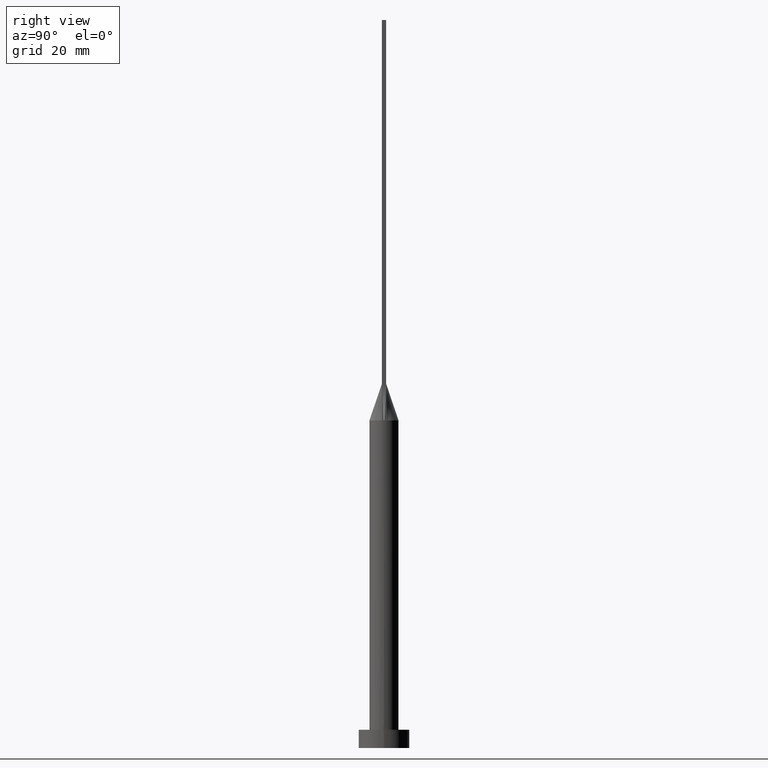
[diagram: clean part render]
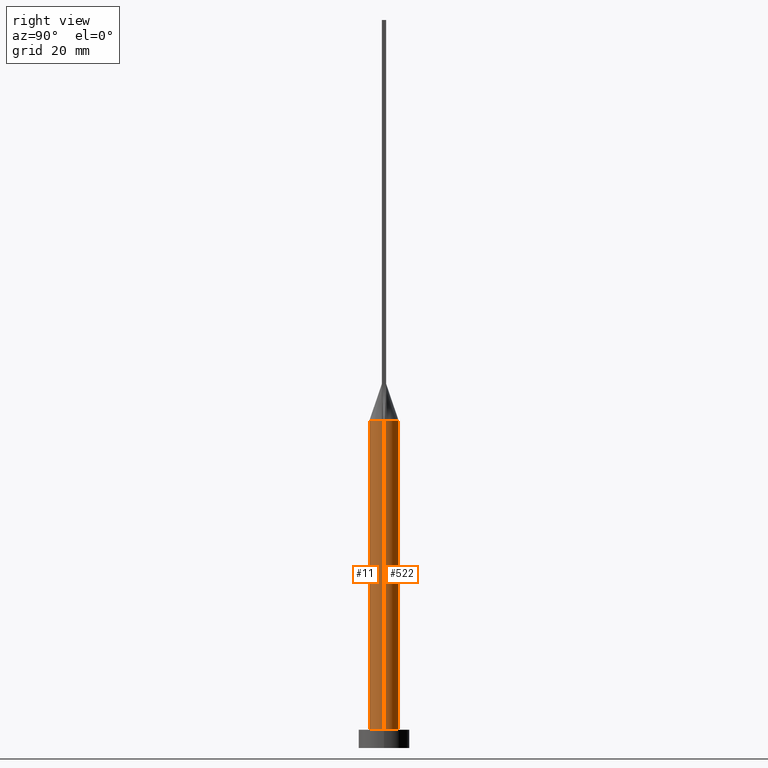
[diagram: same view with one multi-face feature highlighted, each face labeled with its STEP entity id]
A machine part, right view. The highlighted faces form ONE feature: a constant-radius fillet chain: 2 tangent blend faces with common blend radius 4 mm. The faces share edges in the B-rep.
Their STEP definitions:
[1] entity #11 (Cylinder):
#11 = ADVANCED_FACE ( 'NONE', ( #439 ), #385, .T. ) ;
#20 = EDGE_CURVE ( 'NONE', #281, #240, #435, .T. ) ;
#24 = ORIENTED_EDGE ( 'NONE', *, *, #315, .T. ) ;
#40 = DIRECTION ( 'NONE',  ( 1.000000000000000000, 0.000000000000000000, 0.000000000000000000 ) ) ;
#62 = EDGE_LOOP ( 'NONE', ( #413, #555, #538, #425, #221, #24 ) ) ;
#74 = CARTESIAN_POINT ( 'NONE',  ( 4.000000000000000000, 4.898587196589412829E-16, 90.00000000000001421 ) ) ;
#84 = DIRECTION ( 'NONE',  ( -0.000000000000000000, -0.000000000000000000, -1.000000000000000000 ) ) ;
#91 = EDGE_CURVE ( 'NONE', #495, #418, #295, .T. ) ;
#97 = AXIS2_PLACEMENT_3D ( 'NONE', #243, #559, #300 ) ;
#113 = CIRCLE ( 'NONE', #132, 4.000000000000000000 ) ;
#131 = CARTESIAN_POINT ( 'NONE',  ( 4.000000000000000000, 4.898587196589412829E-16, 5.000000000000000000 ) ) ;
#132 = AXIS2_PLACEMENT_3D ( 'NONE', #321, #149, #267 ) ;
#136 = CARTESIAN_POINT ( 'NONE',  ( 3.999842262273348936, 9.852009208038395466E-16, 90.00000000000001421 ) ) ;
#149 = DIRECTION ( 'NONE',  ( 0.000000000000000000, 0.000000000000000000, 1.000000000000000000 ) ) ;
#180 = EDGE_CURVE ( 'NONE', #195, #361, #424, .T. ) ;
#187 = CARTESIAN_POINT ( 'NONE',  ( -4.000000000000000000, 0.000000000000000000, 5.000000000000000000 ) ) ;
#193 = CARTESIAN_POINT ( 'NONE',  ( 3.950116941581656604, -0.6320178829360038053, 90.00000000000001421 ) ) ;
#195 = VERTEX_POINT ( 'NONE', #339 ) ;
#221 = ORIENTED_EDGE ( 'NONE', *, *, #180, .T. ) ;
#225 = VECTOR ( 'NONE', #84, 1000.000000000000000 ) ;
#233 = AXIS2_PLACEMENT_3D ( 'NONE', #534, #256, #40 ) ;
#240 = VERTEX_POINT ( 'NONE', #131 ) ;
#243 = CARTESIAN_POINT ( 'NONE',  ( 0.000000000000000000, 0.000000000000000000, 90.00000000000001421 ) ) ;
#256 = DIRECTION ( 'NONE',  ( 0.000000000000000000, 0.000000000000000000, 1.000000000000000000 ) ) ;
#259 = DIRECTION ( 'NONE',  ( 1.000000000000000000, 9.769962616701377556E-15, 0.000000000000000000 ) ) ;
#261 = EDGE_CURVE ( 'NONE', #418, #281, #351, .T. ) ;
#267 = DIRECTION ( 'NONE',  ( 1.000000000000000000, 0.000000000000000000, 0.000000000000000000 ) ) ;
#272 = CIRCLE ( 'NONE', #233, 4.000000000000000000 ) ;
#281 = VERTEX_POINT ( 'NONE', #136 ) ;
#295 = CIRCLE ( 'NONE', #97, 4.000000000000000000 ) ;
#297 = DIRECTION ( 'NONE',  ( -0.000000000000000000, -0.000000000000000000, -1.000000000000000000 ) ) ;
#299 = CARTESIAN_POINT ( 'NONE',  ( -4.000000000000000000, 0.000000000000000000, 90.00000000000001421 ) ) ;
#300 = DIRECTION ( 'NONE',  ( 1.000000000000000000, 0.000000000000000000, 0.000000000000000000 ) ) ;
#303 = CARTESIAN_POINT ( 'NONE',  ( 0.000000000000000000, 0.000000000000000000, 90.00000000000001421 ) ) ;
#305 = AXIS2_PLACEMENT_3D ( 'NONE', #303, #297, #475 ) ;
#309 = CARTESIAN_POINT ( 'NONE',  ( 0.000000000000000000, 0.000000000000000000, 90.00000000000001421 ) ) ;
#315 = EDGE_CURVE ( 'NONE', #361, #240, #272, .T. ) ;
#321 = CARTESIAN_POINT ( 'NONE',  ( 0.000000000000000000, 0.000000000000000000, 90.00000000000001421 ) ) ;
#332 = VECTOR ( 'NONE', #433, 1000.000000000000000 ) ;
#339 = CARTESIAN_POINT ( 'NONE',  ( -3.999842262273348048, -9.740943882706926662E-16, 90.00000000000001421 ) ) ;
#351 = CIRCLE ( 'NONE', #527, 4.000000000000000000 ) ;
#361 = VERTEX_POINT ( 'NONE', #187 ) ;
#362 = EDGE_CURVE ( 'NONE', #195, #495, #113, .T. ) ;
#385 = CYLINDRICAL_SURFACE ( 'NONE', #305, 4.000000000000000000 ) ;
#413 = ORIENTED_EDGE ( 'NONE', *, *, #20, .F. ) ;
#418 = VERTEX_POINT ( 'NONE', #193 ) ;
#424 = LINE ( 'NONE', #299, #225 ) ;
#425 = ORIENTED_EDGE ( 'NONE', *, *, #362, .F. ) ;
#433 = DIRECTION ( 'NONE',  ( -0.000000000000000000, -0.000000000000000000, -1.000000000000000000 ) ) ;
#435 = LINE ( 'NONE', #74, #332 ) ;
#439 = FACE_OUTER_BOUND ( 'NONE', #62, .T. ) ;
#475 = DIRECTION ( 'NONE',  ( -1.000000000000000000, 0.000000000000000000, 0.000000000000000000 ) ) ;
#495 = VERTEX_POINT ( 'NONE', #542 ) ;
#527 = AXIS2_PLACEMENT_3D ( 'NONE', #309, #539, #259 ) ;
#534 = CARTESIAN_POINT ( 'NONE',  ( 0.000000000000000000, 0.000000000000000000, 5.000000000000000000 ) ) ;
#538 = ORIENTED_EDGE ( 'NONE', *, *, #91, .F. ) ;
#539 = DIRECTION ( 'NONE',  ( 0.000000000000000000, 0.000000000000000000, 1.000000000000000000 ) ) ;
#542 = CARTESIAN_POINT ( 'NONE',  ( -3.950111798046394007, -0.6320171791297864994, 90.00000000000001421 ) ) ;
#555 = ORIENTED_EDGE ( 'NONE', *, *, #261, .F. ) ;
#559 = DIRECTION ( 'NONE',  ( 0.000000000000000000, 0.000000000000000000, 1.000000000000000000 ) ) ;
[2] entity #522 (Cylinder):
#6 = B_SPLINE_CURVE_WITH_KNOTS ( 'NONE', 3,
 ( #395, #580, #506, #510, #108, #64, #277, #460, #61, #200, #296, #479, #34, #420, #483, #525, #165, #468 ),
 .UNSPECIFIED., .F., .F.,
 ( 4, 2, 2, 2, 2, 2, 2, 2, 4 ),
 ( 0.000000000000000000, 0.1249999999999999445, 0.2499999999999998890, 0.3749999999999998335, 0.4999999999999997780, 0.6249999999999997780, 0.7499999999999998890, 0.8749999999999998890, 1.000000000000000000 ),
 .UNSPECIFIED. ) ;
#13 = CARTESIAN_POINT ( 'NONE',  ( 0.000000000000000000, 0.000000000000000000, 90.00000000000001421 ) ) ;
#15 = DIRECTION ( 'NONE',  ( -0.000000000000000000, -0.000000000000000000, -1.000000000000000000 ) ) ;
#20 = EDGE_CURVE ( 'NONE', #281, #240, #435, .T. ) ;
#29 = CARTESIAN_POINT ( 'NONE',  ( 0.000000000000000000, 0.000000000000000000, 90.00000000000001421 ) ) ;
#34 = CARTESIAN_POINT ( 'NONE',  ( -2.553164211252348714, 3.116528153703943538, 90.00000000000000000 ) ) ;
#57 = VERTEX_POINT ( 'NONE', #378 ) ;
#59 = ORIENTED_EDGE ( 'NONE', *, *, #130, .F. ) ;
#61 = CARTESIAN_POINT ( 'NONE',  ( 0.5684794080625145130, 4.000000000000000000, 90.00000000000000000 ) ) ;
#64 = CARTESIAN_POINT ( 'NONE',  ( 2.553164211252348714, 3.116528153703943538, 90.00000000000001421 ) ) ;
#65 = CIRCLE ( 'NONE', #246, 4.000000000000000000 ) ;
#74 = CARTESIAN_POINT ( 'NONE',  ( 4.000000000000000000, 4.898587196589412829E-16, 90.00000000000001421 ) ) ;
#84 = DIRECTION ( 'NONE',  ( -0.000000000000000000, -0.000000000000000000, -1.000000000000000000 ) ) ;
#96 = VERTEX_POINT ( 'NONE', #532 ) ;
#101 = CYLINDRICAL_SURFACE ( 'NONE', #535, 4.000000000000000000 ) ;
#103 = AXIS2_PLACEMENT_3D ( 'NONE', #185, #147, #107 ) ;
#104 = DIRECTION ( 'NONE',  ( 1.000000000000000000, 0.000000000000000000, 0.000000000000000000 ) ) ;
#106 = ORIENTED_EDGE ( 'NONE', *, *, #20, .T. ) ;
#107 = DIRECTION ( 'NONE',  ( 1.000000000000000000, 0.000000000000000000, 0.000000000000000000 ) ) ;
#108 = CARTESIAN_POINT ( 'NONE',  ( 3.219262664220058134, 2.422342486356523938, 90.00000000000000000 ) ) ;
#130 = EDGE_CURVE ( 'NONE', #96, #57, #6, .T. ) ;
#131 = CARTESIAN_POINT ( 'NONE',  ( 4.000000000000000000, 4.898587196589412829E-16, 5.000000000000000000 ) ) ;
#136 = CARTESIAN_POINT ( 'NONE',  ( 3.999842262273348936, 9.852009208038395466E-16, 90.00000000000001421 ) ) ;
#147 = DIRECTION ( 'NONE',  ( 0.000000000000000000, 0.000000000000000000, 1.000000000000000000 ) ) ;
#162 = EDGE_CURVE ( 'NONE', #281, #96, #255, .T. ) ;
#165 = CARTESIAN_POINT ( 'NONE',  ( -3.897760447583618504, 0.9569750049467115049, 90.00000000000004263 ) ) ;
#180 = EDGE_CURVE ( 'NONE', #195, #361, #424, .T. ) ;
#185 = CARTESIAN_POINT ( 'NONE',  ( 0.000000000000000000, 0.000000000000000000, 5.000000000000000000 ) ) ;
#187 = CARTESIAN_POINT ( 'NONE',  ( -4.000000000000000000, 0.000000000000000000, 5.000000000000000000 ) ) ;
#195 = VERTEX_POINT ( 'NONE', #339 ) ;
#200 = CARTESIAN_POINT ( 'NONE',  ( -0.5684794080625158452, 3.999999999999999112, 89.99999999999998579 ) ) ;
#225 = VECTOR ( 'NONE', #84, 1000.000000000000000 ) ;
#231 = DIRECTION ( 'NONE',  ( 0.000000000000000000, 0.000000000000000000, 1.000000000000000000 ) ) ;
#240 = VERTEX_POINT ( 'NONE', #131 ) ;
#246 = AXIS2_PLACEMENT_3D ( 'NONE', #327, #231, #104 ) ;
#255 = CIRCLE ( 'NONE', #370, 4.000000000000000000 ) ;
#277 = CARTESIAN_POINT ( 'NONE',  ( 2.127794970397208107, 3.430476893735948885, 90.00000000000000000 ) ) ;
#281 = VERTEX_POINT ( 'NONE', #136 ) ;
#291 = DIRECTION ( 'NONE',  ( 0.000000000000000000, 0.000000000000000000, 1.000000000000000000 ) ) ;
#296 = CARTESIAN_POINT ( 'NONE',  ( -1.134810363096319996, 3.874001625491799938, 90.00000000000002842 ) ) ;
#299 = CARTESIAN_POINT ( 'NONE',  ( -4.000000000000000000, 0.000000000000000000, 90.00000000000001421 ) ) ;
#327 = CARTESIAN_POINT ( 'NONE',  ( 0.000000000000000000, 0.000000000000000000, 90.00000000000001421 ) ) ;
#332 = VECTOR ( 'NONE', #433, 1000.000000000000000 ) ;
#333 = DIRECTION ( 'NONE',  ( 1.000000000000000000, 0.000000000000000000, 0.000000000000000000 ) ) ;
#339 = CARTESIAN_POINT ( 'NONE',  ( -3.999842262273348048, -9.740943882706926662E-16, 90.00000000000001421 ) ) ;
#342 = CIRCLE ( 'NONE', #103, 4.000000000000000000 ) ;
#349 = EDGE_CURVE ( 'NONE', #57, #195, #65, .T. ) ;
#361 = VERTEX_POINT ( 'NONE', #187 ) ;
#367 = ORIENTED_EDGE ( 'NONE', *, *, #349, .F. ) ;
#370 = AXIS2_PLACEMENT_3D ( 'NONE', #29, #291, #333 ) ;
#378 = CARTESIAN_POINT ( 'NONE',  ( -3.950102418235696522, 0.6320155757311002320, 90.00000000000001421 ) ) ;
#395 = CARTESIAN_POINT ( 'NONE',  ( 3.950097303404373150, 0.6320148730971616446, 90.00000000000001421 ) ) ;
#420 = CARTESIAN_POINT ( 'NONE',  ( -3.219262664220059023, 2.422342486356523938, 90.00000000000002842 ) ) ;
#424 = LINE ( 'NONE', #299, #225 ) ;
#433 = DIRECTION ( 'NONE',  ( -0.000000000000000000, -0.000000000000000000, -1.000000000000000000 ) ) ;
#435 = LINE ( 'NONE', #74, #332 ) ;
#449 = EDGE_CURVE ( 'NONE', #240, #361, #342, .T. ) ;
#456 = ORIENTED_EDGE ( 'NONE', *, *, #162, .F. ) ;
#458 = ORIENTED_EDGE ( 'NONE', *, *, #449, .T. ) ;
#460 = CARTESIAN_POINT ( 'NONE',  ( 1.134810363096318664, 3.874001625491799050, 90.00000000000001421 ) ) ;
#468 = CARTESIAN_POINT ( 'NONE',  ( -3.950102418235696522, 0.6320155757311002320, 90.00000000000001421 ) ) ;
#469 = ORIENTED_EDGE ( 'NONE', *, *, #180, .F. ) ;
#479 = CARTESIAN_POINT ( 'NONE',  ( -2.127794970397209884, 3.430476893735948440, 90.00000000000002842 ) ) ;
#483 = CARTESIAN_POINT ( 'NONE',  ( -3.461914487322979905, 2.043998057340944197, 90.00000000000004263 ) ) ;
#488 = EDGE_LOOP ( 'NONE', ( #456, #106, #458, #469, #367, #59 ) ) ;
#499 = FACE_OUTER_BOUND ( 'NONE', #488, .T. ) ;
#506 = CARTESIAN_POINT ( 'NONE',  ( 3.800365609718893367, 1.311488165564687058, 90.00000000000004263 ) ) ;
#510 = CARTESIAN_POINT ( 'NONE',  ( 3.461914487322979017, 2.043998057340944197, 90.00000000000001421 ) ) ;
#522 = ADVANCED_FACE ( 'NONE', ( #499 ), #101, .T. ) ;
#525 = CARTESIAN_POINT ( 'NONE',  ( -3.800365609718893811, 1.311488165564686392, 90.00000000000004263 ) ) ;
#532 = CARTESIAN_POINT ( 'NONE',  ( 3.950097303404373150, 0.6320148730971616446, 90.00000000000001421 ) ) ;
#535 = AXIS2_PLACEMENT_3D ( 'NONE', #13, #15, #549 ) ;
#549 = DIRECTION ( 'NONE',  ( -1.000000000000000000, 0.000000000000000000, 0.000000000000000000 ) ) ;
#580 = CARTESIAN_POINT ( 'NONE',  ( 3.897760447583618948, 0.9569750049467118380, 90.00000000000002842 ) ) ;